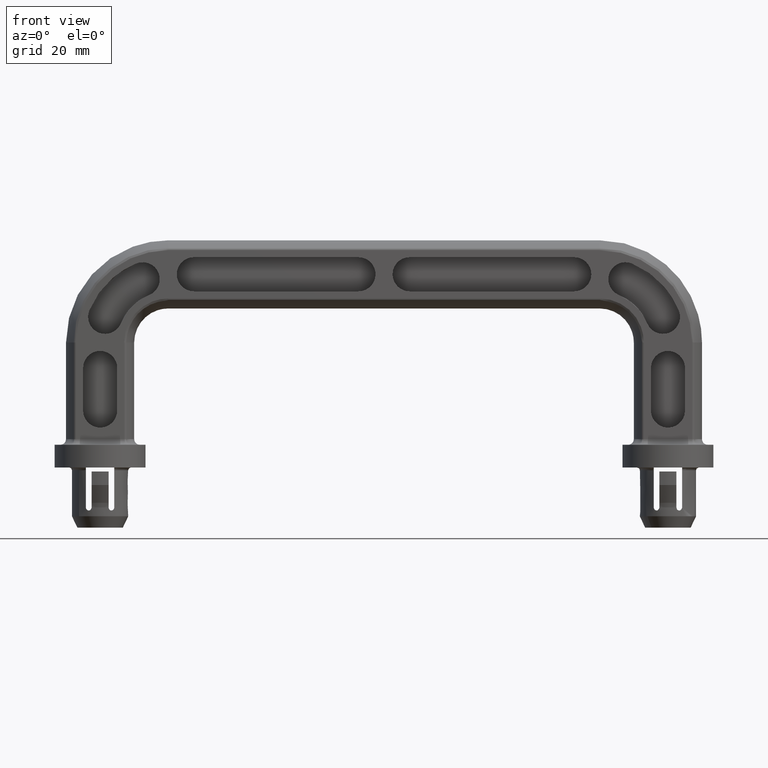
[diagram: clean part render]
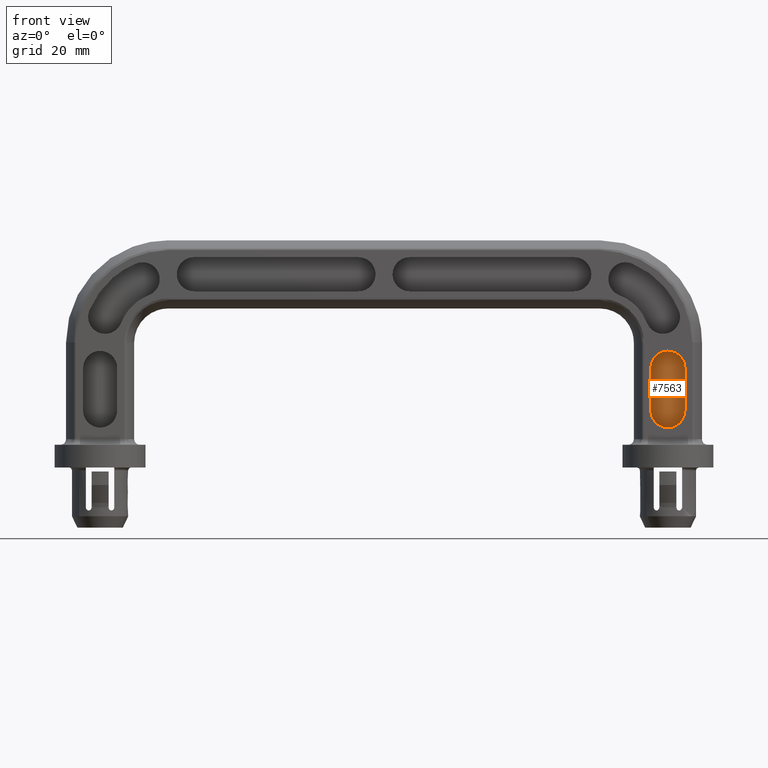
[diagram: same view with one face highlighted and labeled with its STEP entity id]
A machine part, front view. The second image highlights one B-rep face of the part: STEP entity #7563.
In plain terms, the highlighted face is a freeform B-spline surface patch.
Its self-contained STEP definition (entity closure, byte-faithful):
#7485=CARTESIAN_POINT('',(46.700601355413191,-2.0,31.774325305787329));
#7486=CARTESIAN_POINT('',(53.300001434084187,-2.0,31.774325305787329));
#7487=CARTESIAN_POINT('',(46.700601355413191,-2.0,16.925675659807919));
#7488=CARTESIAN_POINT('',(53.300001434084187,-2.0,16.925675659807919));
#7489=B_SPLINE_SURFACE_WITH_KNOTS('',1,1,((#7485,#7487),(#7486,#7488)),.UNSPECIFIED.,.F.,.F.,.U.,(2,2),(2,2),(0.0,6.599400078670996),(0.0,14.848649645979400),.UNSPECIFIED.);
#7490=CARTESIAN_POINT('',(53.000300000000003,-2.0,28.100000000000001));
#7491=VERTEX_POINT('',#7490);
#7492=CARTESIAN_POINT('',(50.000298198339507,-2.0,31.099999999999461));
#7493=VERTEX_POINT('',#7492);
#7494=CARTESIAN_POINT('',(53.000300000000003,-2.0,28.100000000000001));
#7495=CARTESIAN_POINT('',(53.000502324671189,-2.000000000000001,28.443641938911579));
#7496=CARTESIAN_POINT('',(52.906510927878173,-1.999999999999999,28.983443070461281));
#7497=CARTESIAN_POINT('',(52.590050930453053,-2.000000000000001,29.652257576277311));
#7498=CARTESIAN_POINT('',(52.208112070859457,-1.999999999999997,30.167300806295032));
#7499=CARTESIAN_POINT('',(51.702565657051210,-2.000000000000002,30.603425415856581));
#7500=CARTESIAN_POINT('',(50.957292958595211,-2.0,30.990115712874768));
#7501=CARTESIAN_POINT('',(50.368513266671179,-2.0,31.100339173930148));
#7502=CARTESIAN_POINT('',(50.000298198339507,-2.0,31.099999999999461));
#7503=B_SPLINE_CURVE_WITH_KNOTS('',3,(#7494,#7495,#7496,#7497,#7498,#7499,#7500,#7501,#7502),.UNSPECIFIED.,.F.,.U.,(4,1,1,1,1,1,4),(0.000000080383153,1.030860343137252,1.619944265640793,2.209000543737133,2.945292259905543,3.608014820600686,4.712508248476030),.UNSPECIFIED.);
#7504=EDGE_CURVE('',#7491,#7493,#7503,.T.);
#7505=ORIENTED_EDGE('',*,*,#7504,.T.);
#7506=CARTESIAN_POINT('',(47.000300000000003,-2.0,28.100000000000001));
#7507=VERTEX_POINT('',#7506);
#7508=CARTESIAN_POINT('',(50.000298198339507,-2.0,31.099999999999461));
#7509=CARTESIAN_POINT('',(49.607525812601672,-1.999999999999999,31.100383691244321));
#7510=CARTESIAN_POINT('',(49.018807573652623,-2.000000000000003,30.982671818721069));
#7511=CARTESIAN_POINT('',(48.322839563551327,-1.999999999999996,30.610455609767481));
#7512=CARTESIAN_POINT('',(47.865300606134291,-2.000000000000004,30.235000893027120));
#7513=CARTESIAN_POINT('',(47.505466262064182,-1.999999999999998,29.796523182037980));
#7514=CARTESIAN_POINT('',(47.220357946793193,-2.000000000000001,29.278564770973158));
#7515=CARTESIAN_POINT('',(47.041390802924397,-2.0,28.713584188592719));
#7516=CARTESIAN_POINT('',(47.000277653406542,-2.0,28.296340273106811));
#7517=CARTESIAN_POINT('',(47.000300000000003,-2.0,28.100000000000001));
#7518=B_SPLINE_CURVE_WITH_KNOTS('',3,(#7508,#7509,#7510,#7511,#7512,#7513,#7514,#7515,#7516,#7517),.UNSPECIFIED.,.F.,.U.,(4,1,1,1,1,1,1,4),(0.000000082850805,1.178126690072860,1.767214542948051,2.356253148751191,2.945290990394562,3.460746102195549,4.123468377186316,4.712506217534076),.UNSPECIFIED.);
#7519=EDGE_CURVE('',#7493,#7507,#7518,.T.);
#7520=ORIENTED_EDGE('',*,*,#7519,.T.);
#7521=CARTESIAN_POINT('',(47.000300000000003,-2.0,20.600000000000001));
#7522=VERTEX_POINT('',#7521);
#7523=CARTESIAN_POINT('',(47.000300000000003,-2.0,28.100000000000001));
#7524=CARTESIAN_POINT('',(47.000300000000003,-2.0,20.600000000000001));
#7525=QUASI_UNIFORM_CURVE('',1,(#7523,#7524),.UNSPECIFIED.,.F.,.U.);
#7526=EDGE_CURVE('',#7507,#7522,#7525,.T.);
#7527=ORIENTED_EDGE('',*,*,#7526,.T.);
#7528=CARTESIAN_POINT('',(50.000301801660477,-2.0,17.600000000000541));
#7529=VERTEX_POINT('',#7528);
#7530=CARTESIAN_POINT('',(47.000300000000003,-2.0,20.600000000000001));
#7531=CARTESIAN_POINT('',(46.999861748168541,-2.000000000000001,20.207224160119701));
#7532=CARTESIAN_POINT('',(47.127493591412168,-2.000000000000001,19.569442349471501));
#7533=CARTESIAN_POINT('',(47.541996688831162,-2.000000000000001,18.837899680563531));
#7534=CARTESIAN_POINT('',(47.939521861017319,-1.999999999999995,18.399381784886231));
#7535=CARTESIAN_POINT('',(48.385740369856720,-2.000000000000004,18.051133615420280));
#7536=CARTESIAN_POINT('',(49.043285768559777,-1.999999999999993,17.709852513901261));
#7537=CARTESIAN_POINT('',(49.632093341064397,-2.000000000000003,17.599671172075681));
#7538=CARTESIAN_POINT('',(50.000301801660477,-2.0,17.600000000000541));
#7539=B_SPLINE_CURVE_WITH_KNOTS('',3,(#7530,#7531,#7532,#7533,#7534,#7535,#7536,#7537,#7538),.UNSPECIFIED.,.F.,.U.,(4,1,1,1,1,1,4),(0.000000080379063,1.178127195898653,1.914482032611138,2.503506190960937,2.945292259904464,3.608014820600031,4.712508248476024),.UNSPECIFIED.);
#7540=EDGE_CURVE('',#7522,#7529,#7539,.T.);
#7541=ORIENTED_EDGE('',*,*,#7540,.T.);
#7542=CARTESIAN_POINT('',(53.000300000000003,-2.0,20.600000000000001));
#7543=VERTEX_POINT('',#7542);
#7544=CARTESIAN_POINT('',(50.000301801660477,-2.0,17.600000000000541));
#7545=CARTESIAN_POINT('',(50.196640785707757,-2.0,17.599984952584109));
#7546=CARTESIAN_POINT('',(50.638424888635107,-2.0,17.643497871336610));
#7547=CARTESIAN_POINT('',(51.389914423249209,-1.999999999999999,17.891562153754069));
#7548=CARTESIAN_POINT('',(52.041556047940787,-2.000000000000001,18.350430129437179));
#7549=CARTESIAN_POINT('',(52.526407900081132,-1.999999999999999,18.941628115033549));
#7550=CARTESIAN_POINT('',(52.890438559845869,-2.0,19.642993620060778));
#7551=CARTESIAN_POINT('',(53.000631587743321,-2.0,20.231788054551810));
#7552=CARTESIAN_POINT('',(53.000300000000003,-2.0,20.600000000000001));
#7553=B_SPLINE_CURVE_WITH_KNOTS('',3,(#7544,#7545,#7546,#7547,#7548,#7549,#7550,#7551,#7552),.UNSPECIFIED.,.F.,.U.,(4,1,1,1,1,1,4),(0.000000082852171,0.589038678350616,1.325396787627237,2.356253148751743,2.945290990394804,3.608013265636338,4.712506217534090),.UNSPECIFIED.);
#7554=EDGE_CURVE('',#7529,#7543,#7553,.T.);
#7555=ORIENTED_EDGE('',*,*,#7554,.T.);
#7556=CARTESIAN_POINT('',(53.000300000000003,-2.0,20.600000000000001));
#7557=CARTESIAN_POINT('',(53.000300000000003,-2.0,28.100000000000001));
#7558=QUASI_UNIFORM_CURVE('',1,(#7556,#7557),.UNSPECIFIED.,.F.,.U.);
#7559=EDGE_CURVE('',#7543,#7491,#7558,.T.);
#7560=ORIENTED_EDGE('',*,*,#7559,.T.);
#7561=EDGE_LOOP('',(#7505,#7520,#7527,#7541,#7555,#7560));
#7562=FACE_OUTER_BOUND('',#7561,.T.);
#7563=ADVANCED_FACE('',(#7562),#7489,.F.);